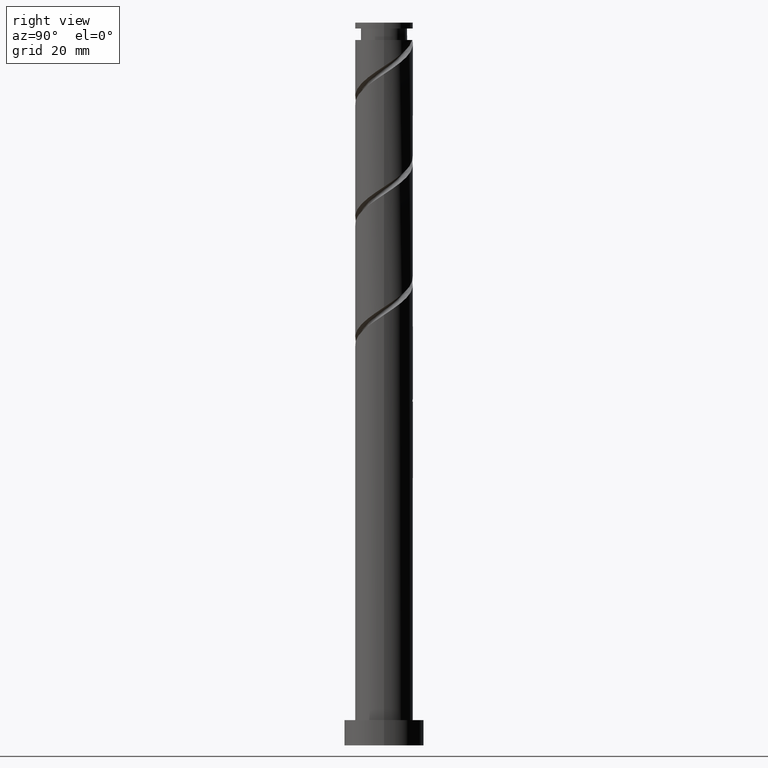
[diagram: clean part render]
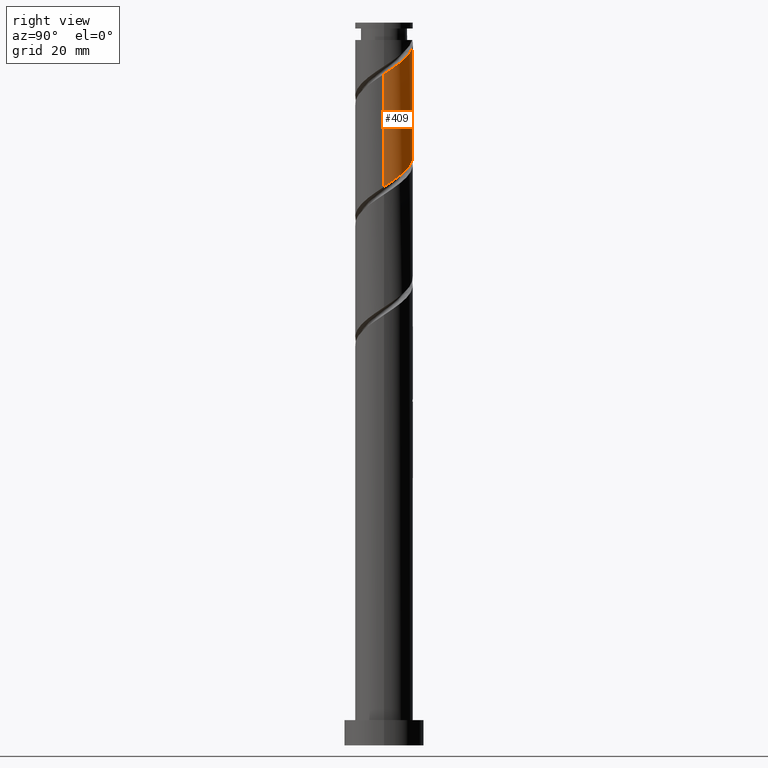
[diagram: same view with one face highlighted and labeled with its STEP entity id]
A machine part, right view. The second image highlights one B-rep face of the part: STEP entity #409.
In plain terms, the highlighted cylindrical surface (edge-blend (fillet) strip) has radius 8 mm, axis along (-0, -0, -1).
Its self-contained STEP definition (entity closure, byte-faithful):
#13 = ORIENTED_EDGE ( 'NONE', *, *, #145, .F. ) ;
#20 = CARTESIAN_POINT ( 'NONE',  ( -4.418017382144908467, 6.669416946860154738, 166.0084352206633014 ) ) ;
#37 = CARTESIAN_POINT ( 'NONE',  ( 7.160823760728806775, 3.566875813338891366, 188.2306574428855868 ) ) ;
#40 = DIRECTION ( 'NONE',  ( -0.000000000000000000, -0.000000000000000000, -1.000000000000000000 ) ) ;
#45 = CARTESIAN_POINT ( 'NONE',  ( 7.984893195483797612, 0.4914068138686316090, 154.8973241095522440 ) ) ;
#62 = CARTESIAN_POINT ( 'NONE',  ( 8.000000000000012434, -4.306689919762597625E-15, 185.7782018987866195 ) ) ;
#73 = CARTESIAN_POINT ( 'NONE',  ( 0.4914068138686445986, 7.984893195483813599, 193.7862129984411865 ) ) ;
#84 = DIRECTION ( 'NONE',  ( -0.000000000000000000, -0.000000000000000000, -1.000000000000000000 ) ) ;
#108 = DIRECTION ( 'NONE',  ( -1.000000000000000000, 0.000000000000000000, 0.000000000000000000 ) ) ;
#121 = CARTESIAN_POINT ( 'NONE',  ( -1.542637946022679785, 7.920198261106529358, 163.9251018873300154 ) ) ;
#145 = EDGE_CURVE ( 'NONE', #844, #743, #420, .T. ) ;
#149 = CARTESIAN_POINT ( 'NONE',  ( -6.691235651318653055, 4.509616146222005462, 168.0917685539966726 ) ) ;
#169 = CARTESIAN_POINT ( 'NONE',  ( 5.993649215984716783, 5.298695035169128431, 189.6195463317744725 ) ) ;
#174 = CARTESIAN_POINT ( 'NONE',  ( 7.920198261106529358, 1.542637946022674900, 155.5917685539967295 ) ) ;
#189 = CARTESIAN_POINT ( 'NONE',  ( 7.840000000000014069, 1.591979899370592033, 186.8417685539967010 ) ) ;
#198 = CARTESIAN_POINT ( 'NONE',  ( 5.296062780650766300, 6.087773924116251401, 190.3139907762188159 ) ) ;
#232 = CARTESIAN_POINT ( 'NONE',  ( 0.000000000000000000, 0.000000000000000000, 200.0000000000000000 ) ) ;
#248 = EDGE_CURVE ( 'NONE', #743, #1460, #595, .T. ) ;
#285 = ORIENTED_EDGE ( 'NONE', *, *, #878, .T. ) ;
#293 = CARTESIAN_POINT ( 'NONE',  ( -7.630411870138929409, 2.624135480455776381, 169.4806574428855583 ) ) ;
#299 = ORIENTED_EDGE ( 'NONE', *, *, #1354, .F. ) ;
#314 = CARTESIAN_POINT ( 'NONE',  ( -1.591979899370685736, 7.840000000000006963, 195.1751018873300723 ) ) ;
#343 = DIRECTION ( 'NONE',  ( -1.000000000000000000, 0.000000000000000000, 0.000000000000000000 ) ) ;
#346 = CARTESIAN_POINT ( 'NONE',  ( 1.542637946022689110, 7.920198261106539128, 193.0917685539966442 ) ) ;
#402 = CARTESIAN_POINT ( 'NONE',  ( 0.5598243182854089062, 8.049588129861067642, 162.5362129984410728 ) ) ;
#409 = ADVANCED_FACE ( 'NONE', ( #1324 ), #1308, .T. ) ;
#420 = LINE ( 'NONE', #1370, #613 ) ;
#442 = CARTESIAN_POINT ( 'NONE',  ( -7.999999999999998224, 4.934748866394679433E-15, 171.2386685425400685 ) ) ;
#446 = CARTESIAN_POINT ( 'NONE',  ( 6.087773924116250512, 5.296062780650749424, 158.3695463317744441 ) ) ;
#448 = CARTESIAN_POINT ( 'NONE',  ( -0.5598243182854001354, 8.049588129861081853, 194.4806574428855299 ) ) ;
#488 = CARTESIAN_POINT ( 'NONE',  ( -7.999999999999988454, 0.000000000000000000, 195.1751018873300154 ) ) ;
#575 = CARTESIAN_POINT ( 'NONE',  ( 5.298695035169128431, 5.993649215984698131, 159.0639907762188443 ) ) ;
#582 = ORIENTED_EDGE ( 'NONE', *, *, #1094, .T. ) ;
#587 = AXIS2_PLACEMENT_3D ( 'NONE', #788, #1328, #108 ) ;
#595 =( BOUNDED_CURVE ( )  B_SPLINE_CURVE ( 2, ( #689, #804, #1233, #293, #1339, #149, #1243, #1616, #20, #1212, #813, #121, #1741, #402, #941, #1223, #1750, #1487, #575, #446, #1532, #1275, #985, #174, #45, #1663, #1682 ),
 .UNSPECIFIED., .F., .T. ) 
 B_SPLINE_CURVE_WITH_KNOTS ( ( 3, 2, 2, 2, 2, 2, 2, 2, 2, 2, 2, 2, 2, 3 ),
 ( 0.4295317669814462946, 0.4375000000000000000, 0.4479166666666666852, 0.4583333333333333148, 0.4687500000000000000, 0.4791666666666666852, 0.4895833333333333148, 0.5000000000000000000, 0.5104166666666666297, 0.5208333333333333703, 0.5312500000000000000, 0.5416666666666666297, 0.5520833333333333703, 0.5545317669814462391 ),
 .UNSPECIFIED. ) 
 CURVE ( )  GEOMETRIC_REPRESENTATION_ITEM ( )  RATIONAL_B_SPLINE_CURVE ( ( 0.9062941362546350632, 0.9031415850403392565, 0.9090909090909147228, 0.9013135103398330905, 0.9090909090909147228, 0.9013135103398330905, 0.9090909090909147228, 0.9013135103398330905, 0.9090909090909147228, 0.9013135103398330905, 0.9090909090909147228, 0.9013135103398330905, 0.9090909090909147228, 0.9013135103398330905, 0.9090909090909147228, 0.9013135103398330905, 0.9090909090909147228, 0.9013135103398330905, 0.9090909090909147228, 0.9013135103398330905, 0.9090909090909147228, 0.9013135103398330905, 0.9090909090909147228, 0.9013135103398330905, 0.9090909090909147228, 0.9072628343904085568, 0.9062941362546350632 ) ) 
 REPRESENTATION_ITEM ( '' )  );
#612 = CARTESIAN_POINT ( 'NONE',  ( 2.541304964830882085, 7.585629115355304819, 192.3973241095522440 ) ) ;
#613 = VECTOR ( 'NONE', #680, 1000.000000000000000 ) ;
#680 = DIRECTION ( 'NONE',  ( -0.000000000000000000, -0.000000000000000000, -1.000000000000000000 ) ) ;
#689 = CARTESIAN_POINT ( 'NONE',  ( -7.999999999999998224, 4.934748866394679433E-15, 171.2386685425400685 ) ) ;
#743 = VERTEX_POINT ( 'NONE', #442 ) ;
#746 = CARTESIAN_POINT ( 'NONE',  ( 8.000000000000014211, 0.8040302522073642377, 186.3116282679758910 ) ) ;
#788 = CARTESIAN_POINT ( 'NONE',  ( 0.000000000000000000, 0.000000000000000000, 195.1751018873300154 ) ) ;
#804 = CARTESIAN_POINT ( 'NONE',  ( -8.000000000000000000, 0.8040302522073731195, 170.7052421733508822 ) ) ;
#813 = CARTESIAN_POINT ( 'NONE',  ( -2.541304964830871871, 7.585629115355294161, 164.6195463317744725 ) ) ;
#844 = VERTEX_POINT ( 'NONE', #488 ) ;
#868 = CARTESIAN_POINT ( 'NONE',  ( 7.630411870138943620, 2.624135480455775937, 187.5362129984410728 ) ) ;
#878 = EDGE_CURVE ( 'NONE', #1192, #1460, #1568, .T. ) ;
#941 = CARTESIAN_POINT ( 'NONE',  ( 1.591979899370593809, 7.839999999999998082, 161.8417685539967010 ) ) ;
#985 = CARTESIAN_POINT ( 'NONE',  ( 7.585629115355295049, 2.541304964830866986, 156.2862129984410728 ) ) ;
#1005 = EDGE_LOOP ( 'NONE', ( #299, #285, #1451, #13, #582 ) ) ;
#1011 =( BOUNDED_CURVE ( )  B_SPLINE_CURVE ( 2, ( #62, #746, #189, #868, #37, #1425, #169, #198, #1294, #1286, #612, #346, #73, #448, #314 ),
 .UNSPECIFIED., .F., .T. ) 
 B_SPLINE_CURVE_WITH_KNOTS ( ( 3, 2, 2, 2, 2, 2, 2, 3 ),
 ( 0.6795317669814462391, 0.6875000000000000000, 0.6979166666666667407, 0.7083333333333332593, 0.7187500000000000000, 0.7291666666666667407, 0.7395833333333332593, 0.7500000000000000000 ),
 .UNSPECIFIED. ) 
 CURVE ( )  GEOMETRIC_REPRESENTATION_ITEM ( )  RATIONAL_B_SPLINE_CURVE ( ( 0.9062941362546418356, 0.9031415850403461398, 0.9090909090909213841, 0.9013135103398399739, 0.9090909090909213841, 0.9013135103398399739, 0.9090909090909213841, 0.9013135103398399739, 0.9090909090909213841, 0.9013135103398399739, 0.9090909090909213841, 0.9013135103398399739, 0.9090909090909213841, 0.9013135103398399739, 0.9090909090909213841 ) ) 
 REPRESENTATION_ITEM ( '' )  );
#1062 = AXIS2_PLACEMENT_3D ( 'NONE', #232, #84, #343 ) ;
#1094 = EDGE_CURVE ( 'NONE', #844, #1632, #1652, .T. ) ;
#1192 = VERTEX_POINT ( 'NONE', #1491 ) ;
#1212 = CARTESIAN_POINT ( 'NONE',  ( -3.539971983639063513, 7.251059969604063404, 165.3139907762189296 ) ) ;
#1223 = CARTESIAN_POINT ( 'NONE',  ( 2.624135480455783043, 7.630411870138927632, 161.1473241095522724 ) ) ;
#1233 = CARTESIAN_POINT ( 'NONE',  ( -7.839999999999998082, 1.591979899370592255, 170.1751018873299870 ) ) ;
#1243 = CARTESIAN_POINT ( 'NONE',  ( -5.993649215984699907, 5.298695035169125767, 167.3973241095521871 ) ) ;
#1275 = CARTESIAN_POINT ( 'NONE',  ( 7.251059969604065181, 3.539971983639058628, 156.9806574428855299 ) ) ;
#1286 = CARTESIAN_POINT ( 'NONE',  ( 3.539971983639075059, 7.251059969604070510, 191.7028796651077869 ) ) ;
#1294 = CARTESIAN_POINT ( 'NONE',  ( 4.418017382144919125, 6.669416946860166284, 191.0084352206633582 ) ) ;
#1308 = CYLINDRICAL_SURFACE ( 'NONE', #1062, 8.000000000000000000 ) ;
#1324 = FACE_OUTER_BOUND ( 'NONE', #1005, .T. ) ;
#1328 = DIRECTION ( 'NONE',  ( -0.000000000000000000, -0.000000000000000000, -1.000000000000000000 ) ) ;
#1339 = CARTESIAN_POINT ( 'NONE',  ( -7.160823760728788123, 3.566875813338890477, 168.7862129984411013 ) ) ;
#1354 = EDGE_CURVE ( 'NONE', #1192, #1632, #1011, .T. ) ;
#1370 = CARTESIAN_POINT ( 'NONE',  ( -8.000000000000000000, 0.000000000000000000, 200.0000000000000000 ) ) ;
#1390 = CARTESIAN_POINT ( 'NONE',  ( 7.999999999999996447, -9.450791768367993082E-15, 154.5720018758733829 ) ) ;
#1425 = CARTESIAN_POINT ( 'NONE',  ( 6.691235651318665489, 4.509616146222005462, 188.9251018873299586 ) ) ;
#1451 = ORIENTED_EDGE ( 'NONE', *, *, #248, .F. ) ;
#1460 = VERTEX_POINT ( 'NONE', #1390 ) ;
#1487 = CARTESIAN_POINT ( 'NONE',  ( 4.509616146222009014, 6.691235651318649502, 159.7584352206633298 ) ) ;
#1491 = CARTESIAN_POINT ( 'NONE',  ( 8.000000000000012434, -4.306689919762597625E-15, 185.7782018987866195 ) ) ;
#1524 = VECTOR ( 'NONE', #40, 1000.000000000000000 ) ;
#1532 = CARTESIAN_POINT ( 'NONE',  ( 6.669416946860154738, 4.418017382144906691, 157.6751018873299870 ) ) ;
#1536 = CARTESIAN_POINT ( 'NONE',  ( 8.000000000000000000, 9.797174393178825657E-16, 200.0000000000000000 ) ) ;
#1568 = LINE ( 'NONE', #1536, #1524 ) ;
#1616 = CARTESIAN_POINT ( 'NONE',  ( -5.296062780650752977, 6.087773924116249624, 166.7028796651077869 ) ) ;
#1632 = VERTEX_POINT ( 'NONE', #1724 ) ;
#1652 = CIRCLE ( 'NONE', #587, 7.999999999999988454 ) ;
#1663 = CARTESIAN_POINT ( 'NONE',  ( 7.999999999999998224, 0.2459356132613917112, 154.7351655639015746 ) ) ;
#1682 = CARTESIAN_POINT ( 'NONE',  ( 7.999999999999996447, -9.450791768367993082E-15, 154.5720018758733829 ) ) ;
#1724 = CARTESIAN_POINT ( 'NONE',  ( -1.591979899370685736, 7.840000000000006963, 195.1751018873300723 ) ) ;
#1741 = CARTESIAN_POINT ( 'NONE',  ( -0.4914068138686350506, 7.984893195483797612, 163.2306574428855583 ) ) ;
#1750 = CARTESIAN_POINT ( 'NONE',  ( 3.566875813338895362, 7.160823760728787235, 160.4528796651077585 ) ) ;